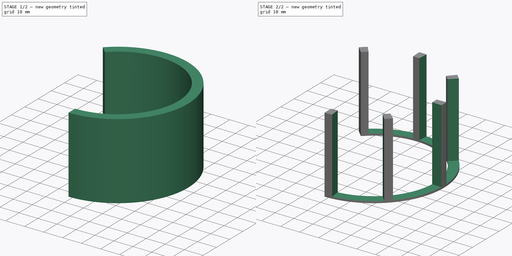
[diagram: build sequence overview — one tinted view per stage of 2, left to right]
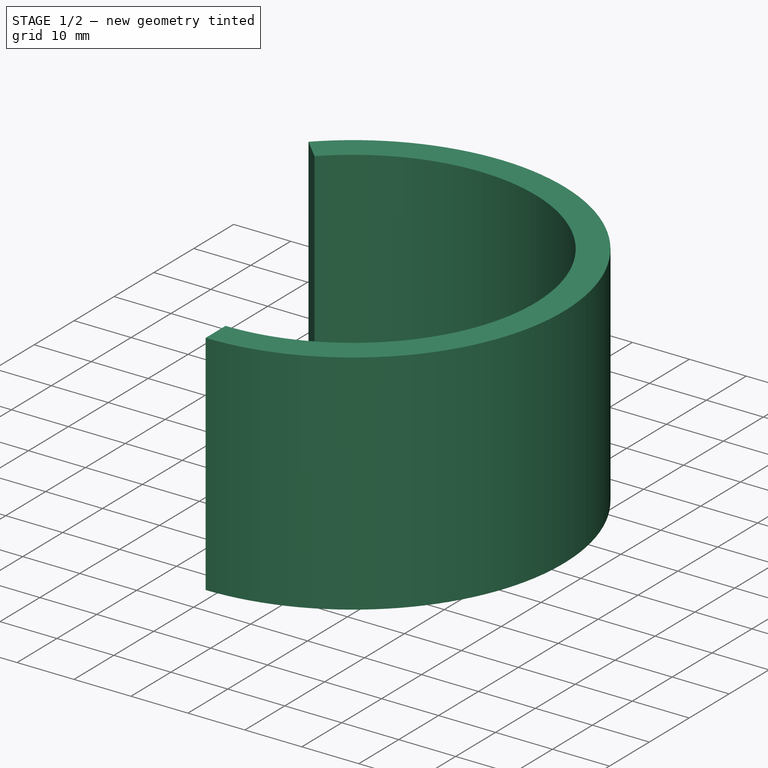
[diagram: stage 1 of 2 — iso view after this stage's code; geometry added in this stage tinted green]
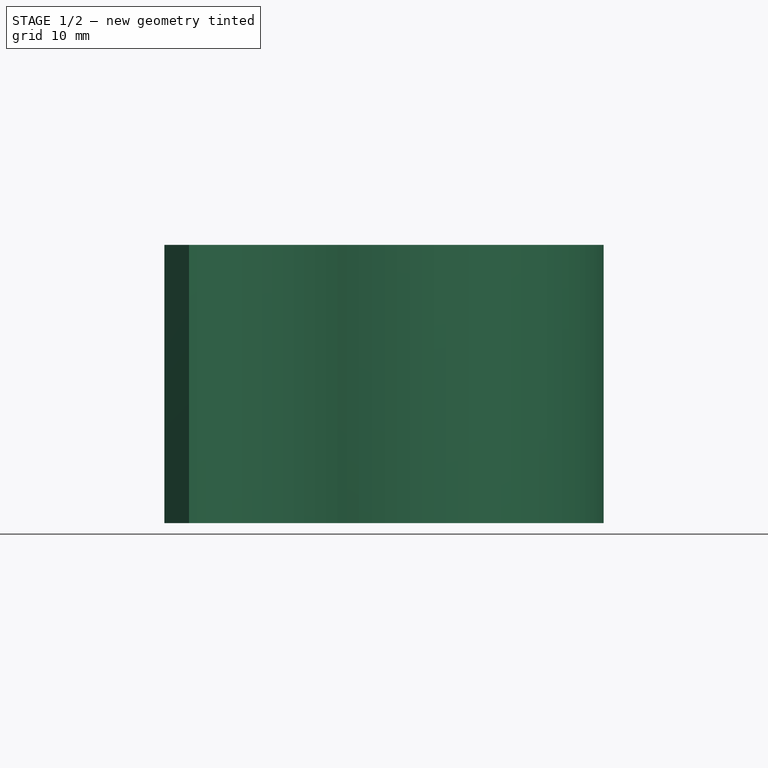
[diagram: stage 1 of 2 — front view after this stage's code; geometry added in this stage tinted green]
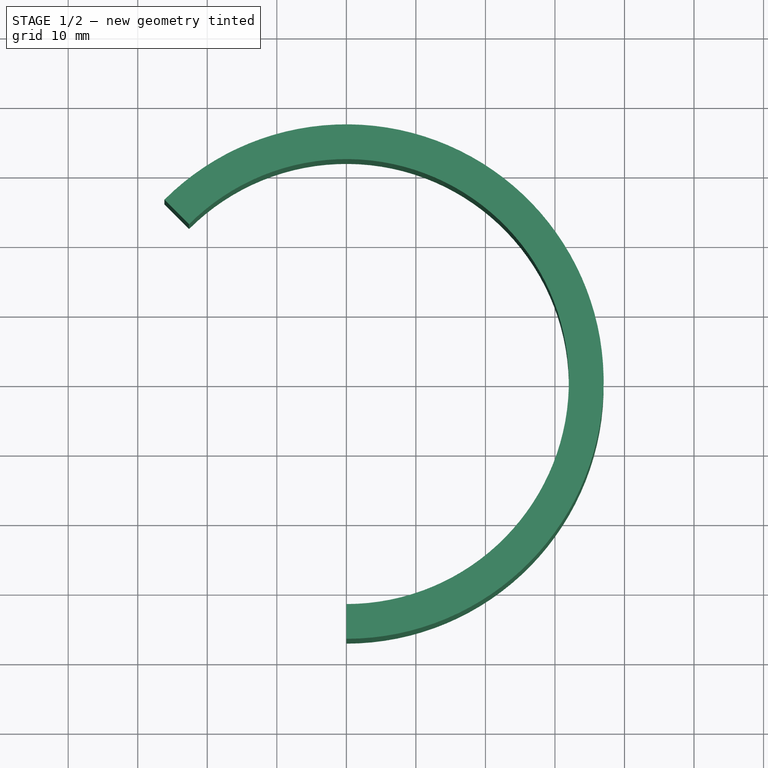
[diagram: stage 1 of 2 — top view after this stage's code; geometry added in this stage tinted green]
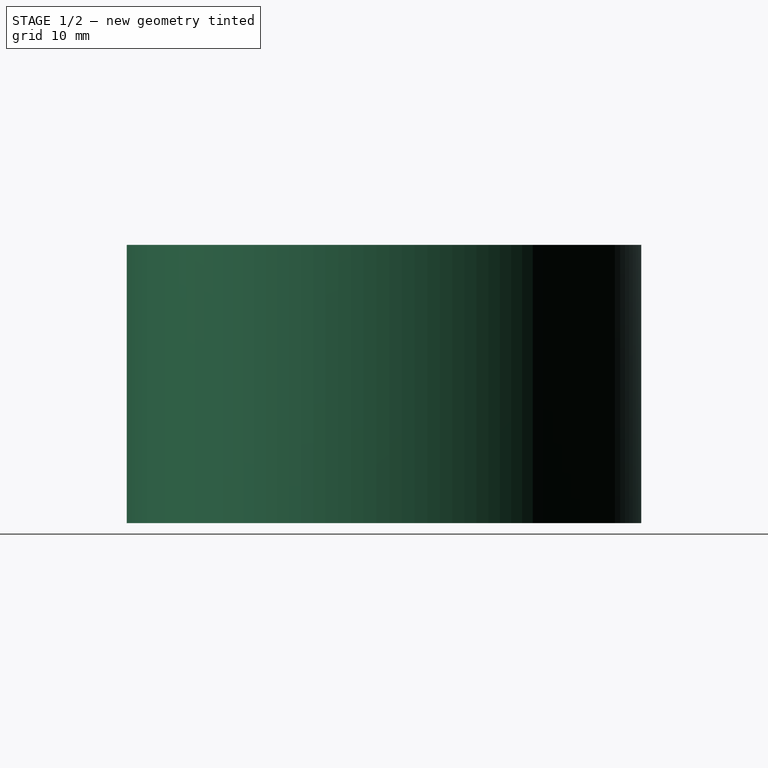
[diagram: stage 1 of 2 — right view after this stage's code; geometry added in this stage tinted green]
FCSTD DOCUMENT  (FreeCAD 0.15R4671 (Git))
Label: motor_guard
License: All rights reserved
LicenseURL: http://en.wikipedia.org/wiki/All_rights_reserved
objects: Sketcher::SketchObject×2, PartDesign::Pad×1, PartDesign::Pocket×1
note: 6 computed .brp shape members not serialized (recipe doc carries the construction recipe); baked Part::Feature solids carry a one-line shape summary decoded from their .brp

FEATURE [Sketcher::SketchObject] Sketch
  sketch-geometry (5):
    g0: ArcOfCircle CenterX=0 CenterY=0 CenterZ=0 NormalX=0 NormalY=0 NormalZ=1 Radius=37 StartAngle=4.71239 EndAngle=8.63938
    g1: ArcOfCircle CenterX=0 CenterY=0 CenterZ=0 NormalX=0 NormalY=0 NormalZ=1 Radius=32 StartAngle=4.71239 EndAngle=8.63938
    g2: LineSegment StartX=0 StartY=-37 StartZ=0 EndX=0 EndY=-32 EndZ=0
    g3: LineSegment [constr] StartX=0 StartY=0 StartZ=0 EndX=-48.0252 EndY=48.0252 EndZ=0
    g4: LineSegment StartX=-22.6274 StartY=22.6274 StartZ=0 EndX=-26.163 EndY=26.163 EndZ=0
  constraints (14):
    c: Coincident(g0,g-1)
    c: Coincident(g1,g-1)
    c: Coincident(g2,g0)
    c: Coincident(g2,g1)
    c: Coincident(g3,g-1)
    c: Angle(g3) = 2.35619
    c: PointOnObject(g0,g3)
    c: PointOnObject(g1,g3)
    c: Coincident(g4,g1)
    c: Coincident(g4,g0)
    c: Radius(g1) = 32
    c: DistanceY(g2) = 5
    c: PointOnObject(g1,g-2)
    c: PointOnObject(g0,g-2)
FEATURE [PartDesign::Pad] Pad
  Length = 40
  Length2 = 100
  Sketch = -> Sketch
  Type = 0
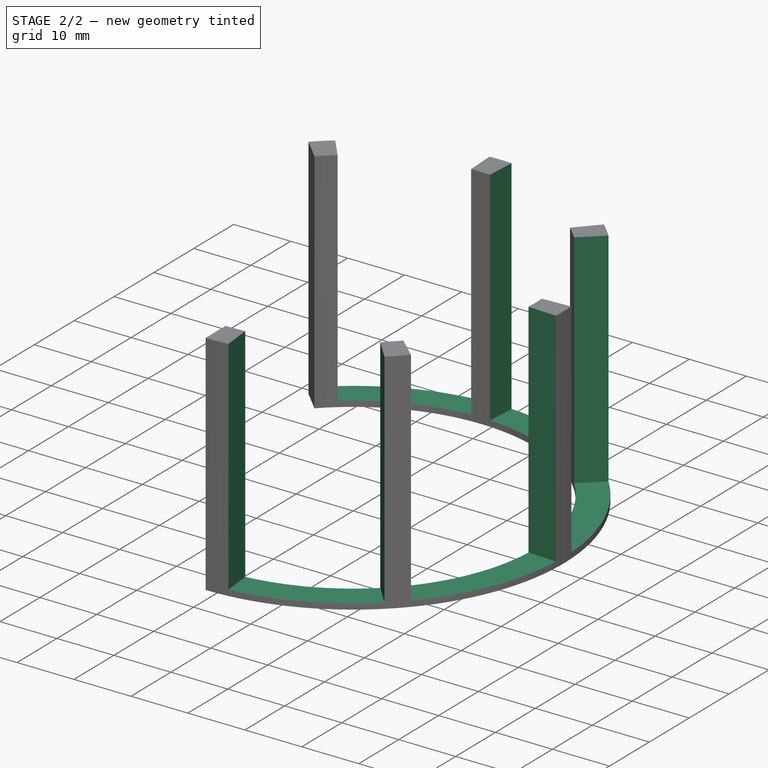
[diagram: stage 2 of 2 — iso view after this stage's code; geometry added in this stage tinted green]
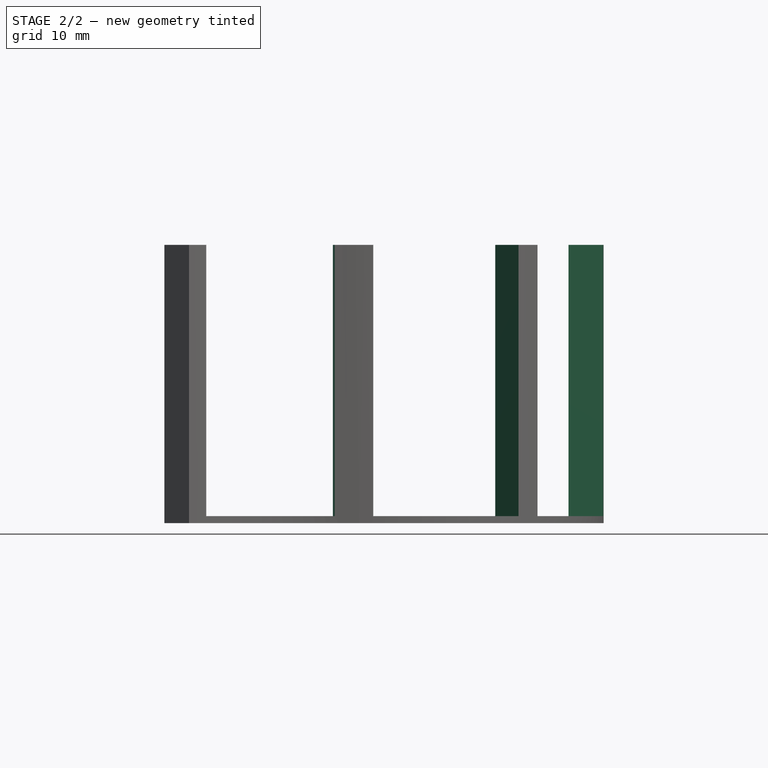
[diagram: stage 2 of 2 — front view after this stage's code; geometry added in this stage tinted green]
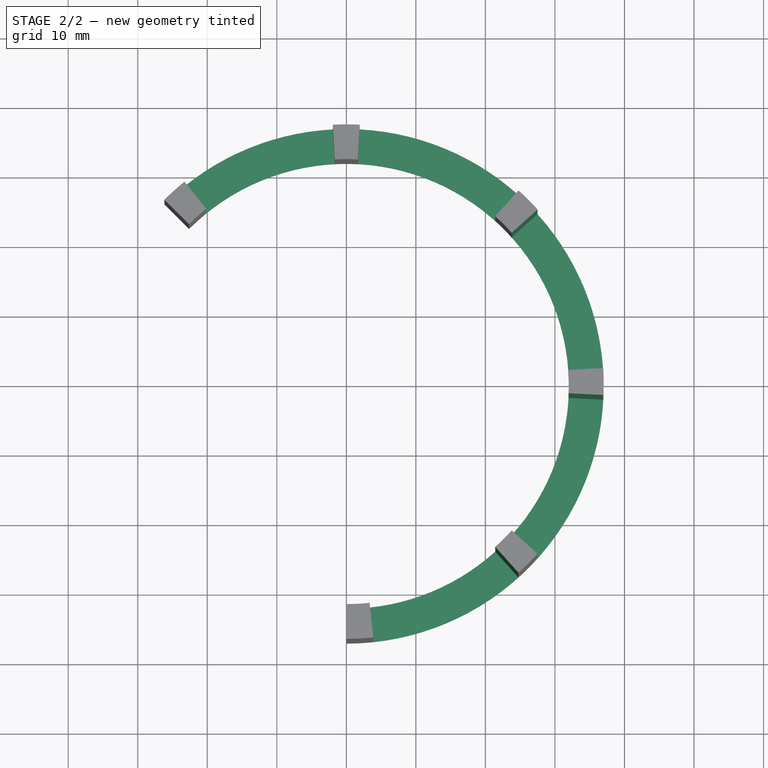
[diagram: stage 2 of 2 — top view after this stage's code; geometry added in this stage tinted green]
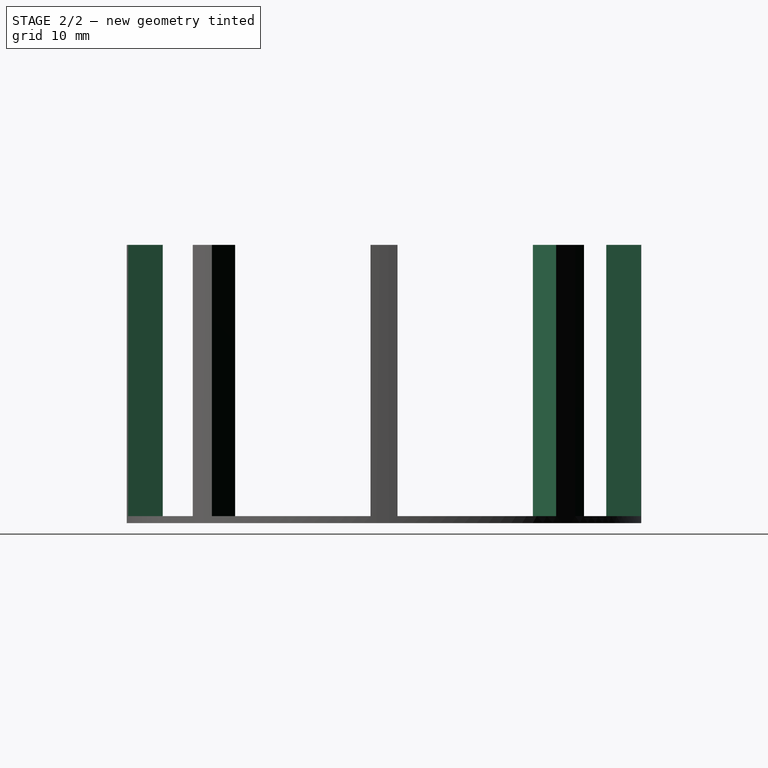
[diagram: stage 2 of 2 — right view after this stage's code; geometry added in this stage tinted green]
FEATURE [Sketcher::SketchObject] Sketch001
  Placement = pos=(0,0,40) rot=(0,0,1;0rad)
  Support = -> Pad [Face6]
  sketch-geometry (15):
    g0: LineSegment StartX=0 StartY=0 StartZ=0 EndX=-30.6796 EndY=37.8861 EndZ=0
    g1: LineSegment StartX=-30.6796 StartY=37.8861 StartZ=0 EndX=-2.39379 EndY=45.6762 EndZ=0
    g2: LineSegment StartX=-2.39379 StartY=45.6762 StartZ=0 EndX=0 EndY=0 EndZ=0
    g3: LineSegment StartX=0 StartY=0 StartZ=0 EndX=2.34164 EndY=44.6811 EndZ=0
    g4: LineSegment StartX=2.34164 StartY=44.6811 StartZ=0 EndX=37.0493 EndY=41.1474 EndZ=0
    g5: LineSegment StartX=37.0493 StartY=41.1474 StartZ=0 EndX=0 EndY=0 EndZ=0
    g6: LineSegment StartX=0 StartY=0 StartZ=0 EndX=39.9991 EndY=36.0154 EndZ=0
    g7: LineSegment StartX=39.9991 StartY=36.0154 StartZ=0 EndX=48.0303 EndY=2.51716 EndZ=0
    g8: LineSegment StartX=48.0303 StartY=2.51716 StartZ=0 EndX=0 EndY=0 EndZ=0
    g9: LineSegment StartX=0 StartY=0 StartZ=0 EndX=49.4612 EndY=-2.59215 EndZ=0
    g10: LineSegment StartX=49.4612 StartY=-2.59215 StartZ=0 EndX=39.264 EndY=-35.3535 EndZ=0
    g11: LineSegment StartX=39.264 StartY=-35.3535 StartZ=0 EndX=0 EndY=0 EndZ=0
    g12: LineSegment StartX=0 StartY=0 StartZ=0 EndX=33.7411 EndY=-37.4733 EndZ=0
    g13: LineSegment StartX=33.7411 StartY=-37.4733 StartZ=0 EndX=4.90911 EndY=-46.7071 EndZ=0
    g14: LineSegment StartX=4.90911 StartY=-46.7071 StartZ=0 EndX=0 EndY=0 EndZ=0
  constraints (30):
    c: Coincident(g-1,g0)
    c: Coincident(g0,g1)
    c: Coincident(g1,g2)
    c: Coincident(g2,g0)
    c: Angle(g0) = 2.25147
    c: Angle(g2) = -1.51844
    c: Coincident(g-1,g3)
    c: Coincident(g3,g4)
    c: Coincident(g4,g5)
    c: Coincident(g5,g3)
    c: Angle(g3,g2) = 0.10472
    c: Angle(g5,g-2) = 0.733038
    c: Coincident(g-1,g6)
    c: Coincident(g6,g7)
    c: Coincident(g7,g8)
    c: Coincident(g8,g6)
    c: Angle(g6,g5) = 0.10472
    c: Angle(g-1,g8) = 0.0523599
    c: Coincident(g-1,g9)
    c: Coincident(g9,g10)
    c: Coincident(g10,g11)
    c: Coincident(g11,g9)
    c: Angle(g9,g8) = 0.10472
    c: Angle(g11,g-1) = 0.733038
    c: Coincident(g-1,g12)
    c: Coincident(g12,g13)
    c: Coincident(g13,g14)
    c: Coincident(g14,g-1)
    c: Angle(g12,g11) = 0.10472
    c: Angle(g14,g-2,g-1) = -0.10472
FEATURE [PartDesign::Pocket] Pocket
  Length = 39
  Sketch = -> Sketch001
  Type = 0
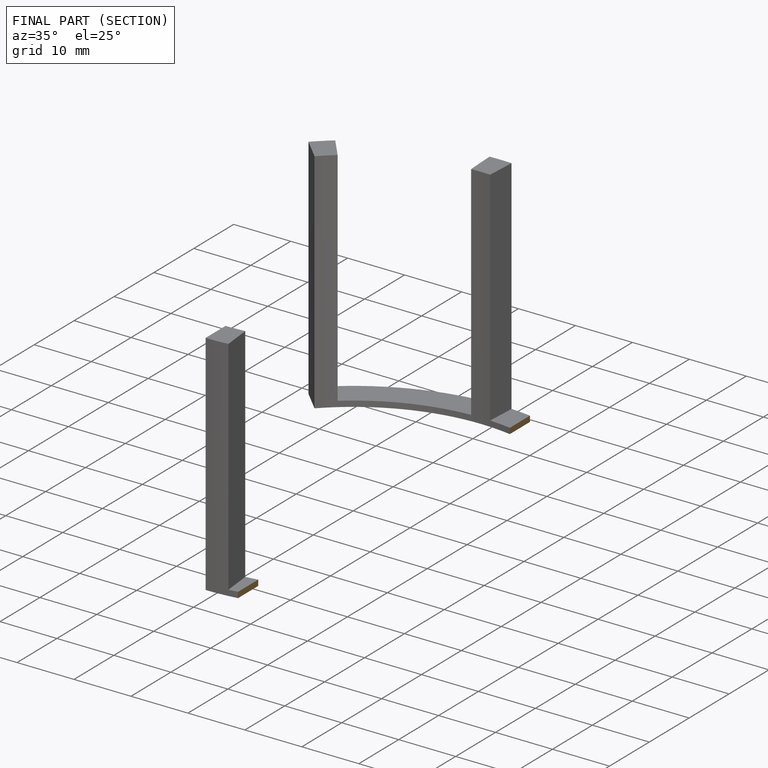
[diagram: finished part — half-section view (interior)]
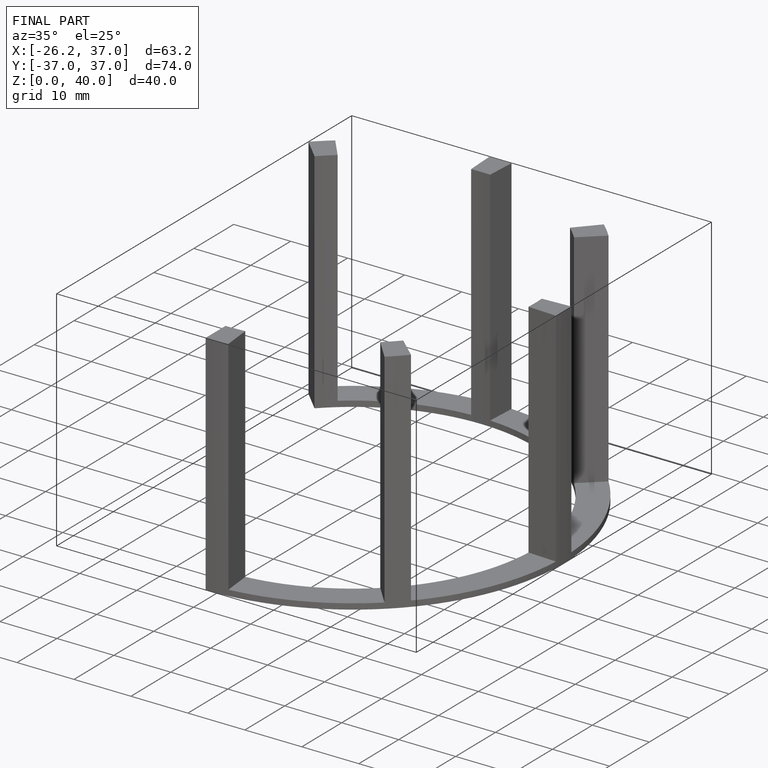
[diagram: finished part — iso view with bounding-box wireframe]
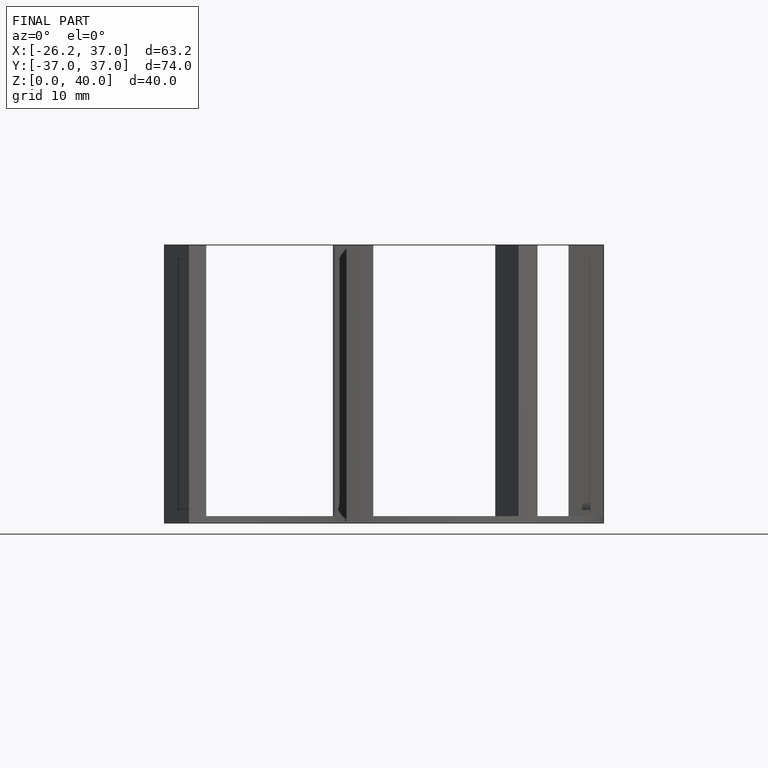
[diagram: finished part — front view with bounding-box wireframe]
